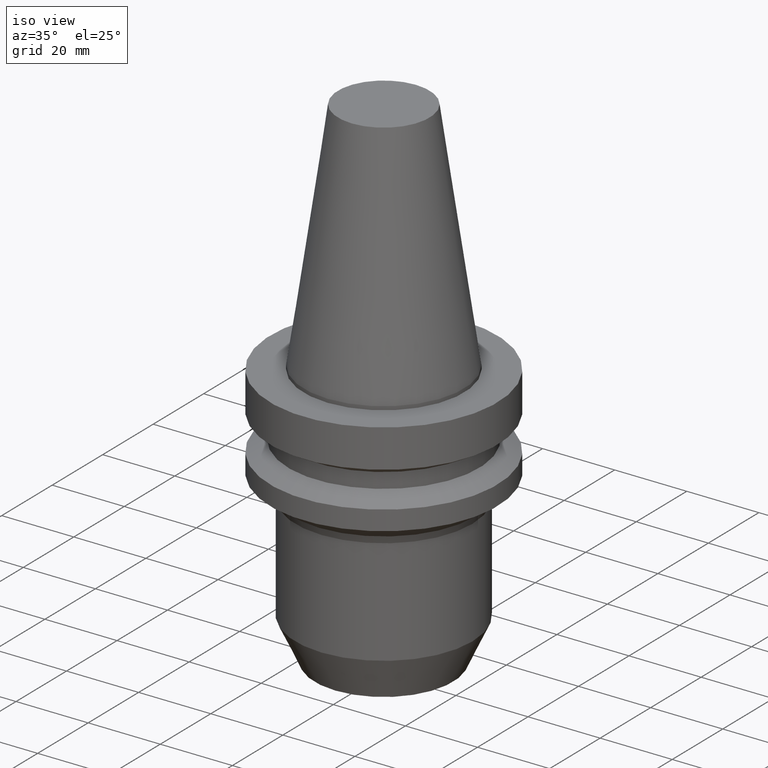
[diagram: clean part render]
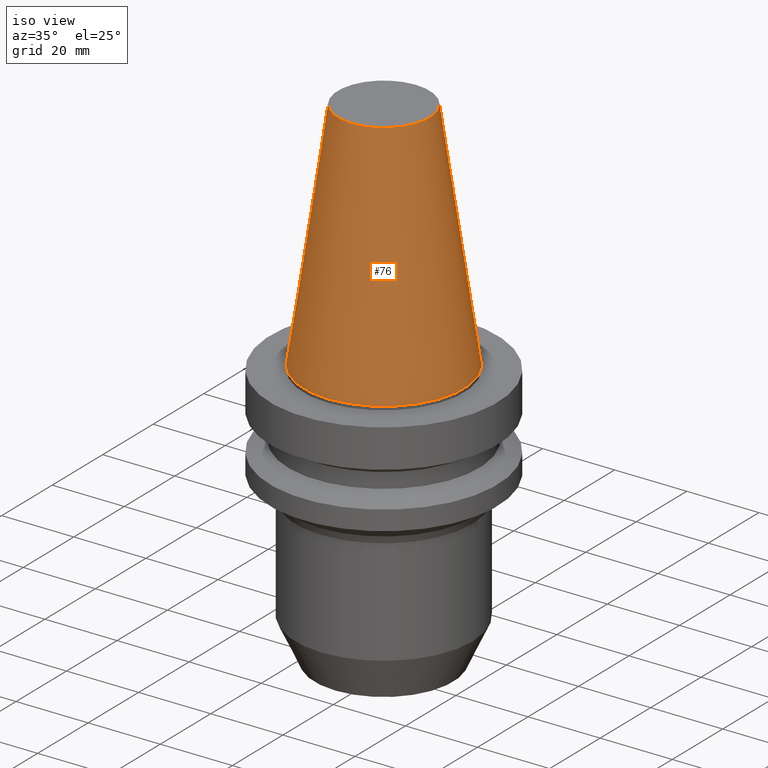
[diagram: same view with one face highlighted and labeled with its STEP entity id]
A machine part, iso view. The second image highlights one B-rep face of the part: STEP entity #76.
In plain terms, the highlighted conical surface has half-angle 8.297 deg.
Its self-contained STEP definition (entity closure, byte-faithful):
#76=ADVANCED_FACE('',(#96,#97),#98,.T.);
#96=FACE_BOUND('',#148,.T.);
#97=FACE_BOUND('',#149,.T.);
#98=CONICAL_SURFACE('',#150,17.4563131601759,0.144812498267625);
#148=EDGE_LOOP('',(#202));
#149=EDGE_LOOP('',(#203));
#150=AXIS2_PLACEMENT_3D('',#204,#205,#206);
#202=ORIENTED_EDGE('',*,*,#287,.F.);
#203=ORIENTED_EDGE('',*,*,#286,.T.);
#204=CARTESIAN_POINT('',(-2.00229751660591E-015,-4.00459503321182E-015,32.6999999999998));
#205=DIRECTION('',(6.12323399573677E-017,1.22464679914735E-016,-1.0));
#206=DIRECTION('',(-1.23259516440783E-032,1.0,1.22464679914735E-016));
#286=EDGE_CURVE('',#303,#303,#304,.T.);
#287=EDGE_CURVE('',#305,#305,#306,.T.);
#303=VERTEX_POINT('',#337);
#304=CIRCLE('',#338,12.687563159218);
#305=VERTEX_POINT('',#339);
#306=CIRCLE('',#340,22.2250631611339);
#337=CARTESIAN_POINT('',(-4.00459503321182E-015,12.687563159218,65.3999999999996));
#338=AXIS2_PLACEMENT_3D('',#371,#372,#373);
#339=CARTESIAN_POINT('',(-1.88219777870408E-031,22.2250631611339,1.32178524611304E-015));
#340=AXIS2_PLACEMENT_3D('',#374,#375,#376);
#371=CARTESIAN_POINT('',(-4.00459503321182E-015,-8.00919006642364E-015,65.3999999999996));
#372=DIRECTION('',(6.12323399573677E-017,1.22464679914735E-016,-1.0));
#373=DIRECTION('',(-1.23259516440783E-032,1.0,1.22464679914735E-016));
#374=CARTESIAN_POINT('',(0.0,0.0,0.0));
#375=DIRECTION('',(6.12323399573677E-017,1.22464679914735E-016,-1.0));
#376=DIRECTION('',(-1.23259516440783E-032,1.0,1.22464679914735E-016));